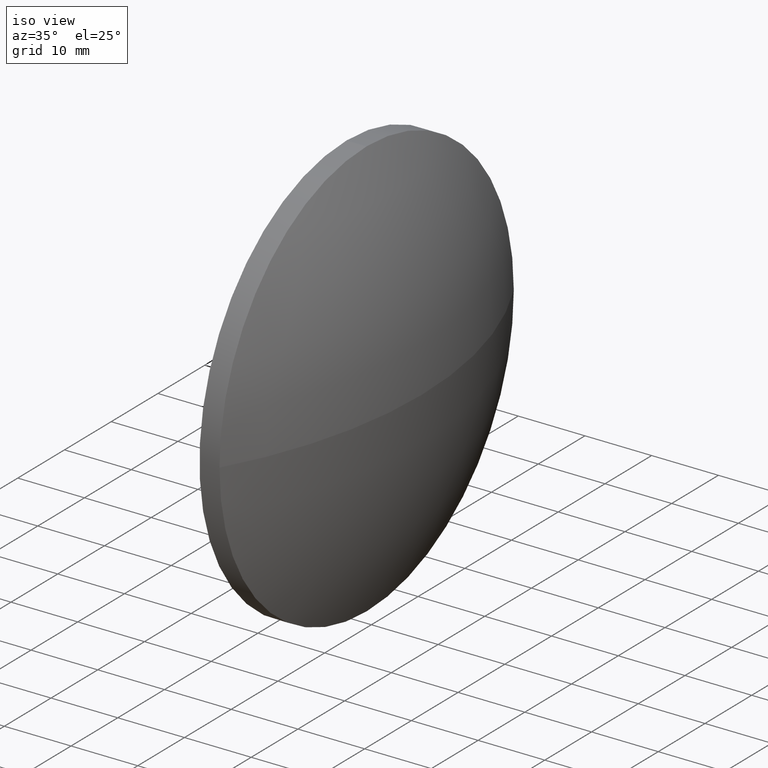
[diagram: clean part render]
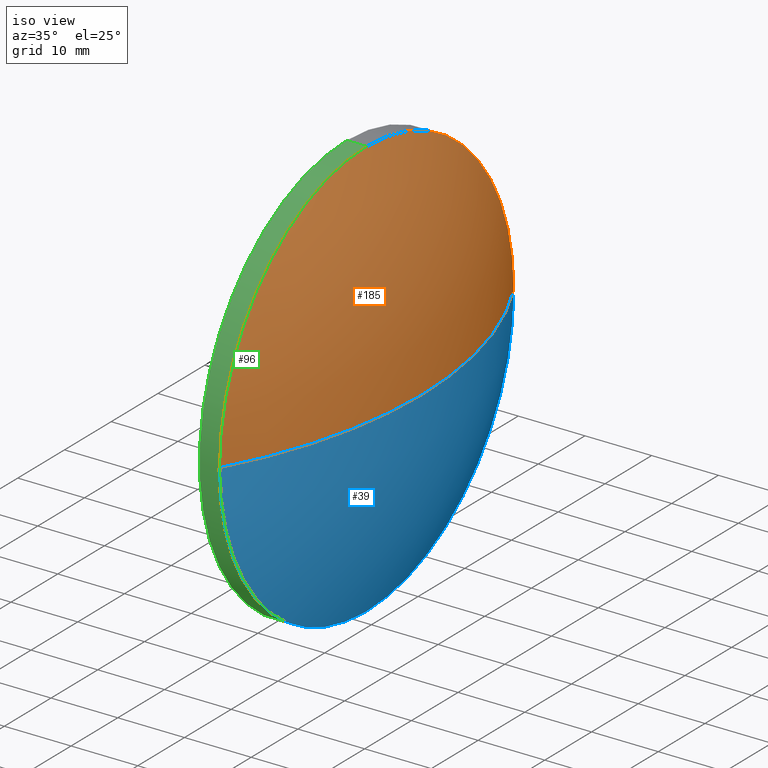
[diagram: same view with three faces highlighted in distinct colors, each labeled with its STEP entity id]
A machine part, iso view with three faces highlighted in distinct colors.
Their STEP definitions:

[orange] entity #185 — the highlighted spherical surface has radius 64.5344 mm.
#2 = CIRCLE ( 'NONE', #41, 31.50000000000000000 ) ;
#3 = DIRECTION ( 'NONE',  ( -0.0000000000000000000, -1.224646799147353200E-016, -1.000000000000000000 ) ) ;
#6 = DIRECTION ( 'NONE',  ( 1.000000000000000000, 0.0000000000000000000, 0.0000000000000000000 ) ) ;
#10 = VERTEX_POINT ( 'NONE', #136 ) ;
#20 = VERTEX_POINT ( 'NONE', #116 ) ;
#23 = CIRCLE ( 'NONE', #150, 64.53435444579774600 ) ;
#24 = ORIENTED_EDGE ( 'NONE', *, *, #93, .T. ) ;
#30 = AXIS2_PLACEMENT_3D ( 'NONE', #57, #37, #86 ) ;
#37 = DIRECTION ( 'NONE',  ( 1.000000000000000000, -0.0000000000000000000, -0.0000000000000000000 ) ) ;
#41 = AXIS2_PLACEMENT_3D ( 'NONE', #176, #71, #145 ) ;
#43 = CARTESIAN_POINT ( 'NONE',  ( 228.9653141997173700, 98.96710985282442200, 0.0000000000000000000 ) ) ;
#46 = CARTESIAN_POINT ( 'NONE',  ( 172.6409597539196500, 130.4671098528244200, 0.0000000000000000000 ) ) ;
#50 = SPHERICAL_SURFACE ( 'NONE', #184, 64.53435444579774600 ) ;
#57 = CARTESIAN_POINT ( 'NONE',  ( 228.9653141997173700, 130.4671098528244200, 0.0000000000000000000 ) ) ;
#69 = ORIENTED_EDGE ( 'NONE', *, *, #144, .F. ) ;
#70 = DIRECTION ( 'NONE',  ( 0.0000000000000000000, 0.0000000000000000000, 1.000000000000000000 ) ) ;
#71 = DIRECTION ( 'NONE',  ( 1.000000000000000000, -0.0000000000000000000, -0.0000000000000000000 ) ) ;
#84 = ORIENTED_EDGE ( 'NONE', *, *, #162, .T. ) ;
#86 = DIRECTION ( 'NONE',  ( 0.0000000000000000000, 0.0000000000000000000, -1.000000000000000000 ) ) ;
#88 = CARTESIAN_POINT ( 'NONE',  ( 172.6409597539196500, 130.4671098528244200, 0.0000000000000000000 ) ) ;
#89 = EDGE_LOOP ( 'NONE', ( #69, #97, #84, #24 ) ) ;
#92 = CARTESIAN_POINT ( 'NONE',  ( 228.9653141997173700, 161.9671098528244200, -3.857637417314163500E-015 ) ) ;
#93 = EDGE_CURVE ( 'NONE', #139, #10, #23, .T. ) ;
#97 = ORIENTED_EDGE ( 'NONE', *, *, #113, .T. ) ;
#113 = EDGE_CURVE ( 'NONE', #114, #20, #2, .T. ) ;
#114 = VERTEX_POINT ( 'NONE', #92 ) ;
#116 = CARTESIAN_POINT ( 'NONE',  ( 228.9653141997173700, 130.4671098528244200, 31.50000000000000000 ) ) ;
#120 = DIRECTION ( 'NONE',  ( 0.0000000000000000000, -1.000000000000000000, 0.0000000000000000000 ) ) ;
#122 = DIRECTION ( 'NONE',  ( 0.0000000000000000000, 1.000000000000000000, -1.224646799147353200E-016 ) ) ;
#133 = AXIS2_PLACEMENT_3D ( 'NONE', #156, #3, #122 ) ;
#136 = CARTESIAN_POINT ( 'NONE',  ( 237.1753141997173800, 130.4671098528244200, 0.0000000000000000000 ) ) ;
#139 = VERTEX_POINT ( 'NONE', #43 ) ;
#144 = EDGE_CURVE ( 'NONE', #114, #10, #186, .T. ) ;
#145 = DIRECTION ( 'NONE',  ( 0.0000000000000000000, 0.0000000000000000000, -1.000000000000000000 ) ) ;
#149 = CIRCLE ( 'NONE', #30, 31.50000000000000000 ) ;
#150 = AXIS2_PLACEMENT_3D ( 'NONE', #46, #70, #6 ) ;
#156 = CARTESIAN_POINT ( 'NONE',  ( 172.6409597539196500, 130.4671098528244200, 0.0000000000000000000 ) ) ;
#160 = DIRECTION ( 'NONE',  ( 0.0000000000000000000, -0.0000000000000000000, -1.000000000000000000 ) ) ;
#162 = EDGE_CURVE ( 'NONE', #20, #139, #149, .T. ) ;
#164 = FACE_OUTER_BOUND ( 'NONE', #89, .T. ) ;
#176 = CARTESIAN_POINT ( 'NONE',  ( 228.9653141997173700, 130.4671098528244200, 0.0000000000000000000 ) ) ;
#184 = AXIS2_PLACEMENT_3D ( 'NONE', #88, #160, #120 ) ;
#185 = ADVANCED_FACE ( 'NONE', ( #164 ), #50, .T. ) ;
#186 = CIRCLE ( 'NONE', #133, 64.53435444579774600 ) ;

[blue] entity #39 — the highlighted spherical surface has radius 64.5344 mm.
#3 = DIRECTION ( 'NONE',  ( -0.0000000000000000000, -1.224646799147353200E-016, -1.000000000000000000 ) ) ;
#6 = DIRECTION ( 'NONE',  ( 1.000000000000000000, 0.0000000000000000000, 0.0000000000000000000 ) ) ;
#10 = VERTEX_POINT ( 'NONE', #136 ) ;
#11 = DIRECTION ( 'NONE',  ( 1.000000000000000000, -0.0000000000000000000, -0.0000000000000000000 ) ) ;
#15 = ORIENTED_EDGE ( 'NONE', *, *, #76, .T. ) ;
#16 = CIRCLE ( 'NONE', #146, 31.50000000000000000 ) ;
#21 = CARTESIAN_POINT ( 'NONE',  ( 228.9653141997173700, 130.4671098528244200, -31.50000000000000000 ) ) ;
#23 = CIRCLE ( 'NONE', #150, 64.53435444579774600 ) ;
#33 = SPHERICAL_SURFACE ( 'NONE', #100, 64.53435444579774600 ) ;
#34 = DIRECTION ( 'NONE',  ( 1.000000000000000000, -0.0000000000000000000, -0.0000000000000000000 ) ) ;
#39 = ADVANCED_FACE ( 'NONE', ( #110 ), #33, .T. ) ;
#43 = CARTESIAN_POINT ( 'NONE',  ( 228.9653141997173700, 98.96710985282442200, 0.0000000000000000000 ) ) ;
#46 = CARTESIAN_POINT ( 'NONE',  ( 172.6409597539196500, 130.4671098528244200, 0.0000000000000000000 ) ) ;
#52 = VERTEX_POINT ( 'NONE', #21 ) ;
#60 = DIRECTION ( 'NONE',  ( 0.0000000000000000000, 0.0000000000000000000, -1.000000000000000000 ) ) ;
#64 = EDGE_CURVE ( 'NONE', #139, #52, #16, .T. ) ;
#70 = DIRECTION ( 'NONE',  ( 0.0000000000000000000, 0.0000000000000000000, 1.000000000000000000 ) ) ;
#76 = EDGE_CURVE ( 'NONE', #52, #114, #111, .T. ) ;
#82 = CARTESIAN_POINT ( 'NONE',  ( 228.9653141997173700, 130.4671098528244200, 0.0000000000000000000 ) ) ;
#92 = CARTESIAN_POINT ( 'NONE',  ( 228.9653141997173700, 161.9671098528244200, -3.857637417314163500E-015 ) ) ;
#93 = EDGE_CURVE ( 'NONE', #139, #10, #23, .T. ) ;
#99 = ORIENTED_EDGE ( 'NONE', *, *, #64, .T. ) ;
#100 = AXIS2_PLACEMENT_3D ( 'NONE', #117, #173, #140 ) ;
#109 = ORIENTED_EDGE ( 'NONE', *, *, #93, .F. ) ;
#110 = FACE_OUTER_BOUND ( 'NONE', #134, .T. ) ;
#111 = CIRCLE ( 'NONE', #137, 31.50000000000000000 ) ;
#114 = VERTEX_POINT ( 'NONE', #92 ) ;
#117 = CARTESIAN_POINT ( 'NONE',  ( 172.6409597539196500, 130.4671098528244200, 0.0000000000000000000 ) ) ;
#122 = DIRECTION ( 'NONE',  ( 0.0000000000000000000, 1.000000000000000000, -1.224646799147353200E-016 ) ) ;
#133 = AXIS2_PLACEMENT_3D ( 'NONE', #156, #3, #122 ) ;
#134 = EDGE_LOOP ( 'NONE', ( #99, #15, #178, #109 ) ) ;
#136 = CARTESIAN_POINT ( 'NONE',  ( 237.1753141997173800, 130.4671098528244200, 0.0000000000000000000 ) ) ;
#137 = AXIS2_PLACEMENT_3D ( 'NONE', #181, #34, #60 ) ;
#139 = VERTEX_POINT ( 'NONE', #43 ) ;
#140 = DIRECTION ( 'NONE',  ( 0.0000000000000000000, -1.000000000000000000, 0.0000000000000000000 ) ) ;
#144 = EDGE_CURVE ( 'NONE', #114, #10, #186, .T. ) ;
#146 = AXIS2_PLACEMENT_3D ( 'NONE', #82, #11, #152 ) ;
#150 = AXIS2_PLACEMENT_3D ( 'NONE', #46, #70, #6 ) ;
#152 = DIRECTION ( 'NONE',  ( 0.0000000000000000000, 0.0000000000000000000, -1.000000000000000000 ) ) ;
#156 = CARTESIAN_POINT ( 'NONE',  ( 172.6409597539196500, 130.4671098528244200, 0.0000000000000000000 ) ) ;
#173 = DIRECTION ( 'NONE',  ( 0.0000000000000000000, -0.0000000000000000000, -1.000000000000000000 ) ) ;
#178 = ORIENTED_EDGE ( 'NONE', *, *, #144, .T. ) ;
#181 = CARTESIAN_POINT ( 'NONE',  ( 228.9653141997173700, 130.4671098528244200, 0.0000000000000000000 ) ) ;
#186 = CIRCLE ( 'NONE', #133, 64.53435444579774600 ) ;

[green] entity #96 — the highlighted cylindrical surface (partial cylindrical patch) has radius 31.5 mm, axis along (1, -0, -0).
#7 = ORIENTED_EDGE ( 'NONE', *, *, #64, .F. ) ;
#8 = AXIS2_PLACEMENT_3D ( 'NONE', #179, #74, #26 ) ;
#11 = DIRECTION ( 'NONE',  ( 1.000000000000000000, -0.0000000000000000000, -0.0000000000000000000 ) ) ;
#16 = CIRCLE ( 'NONE', #146, 31.50000000000000000 ) ;
#18 = CIRCLE ( 'NONE', #8, 31.50000000000000000 ) ;
#20 = VERTEX_POINT ( 'NONE', #116 ) ;
#21 = CARTESIAN_POINT ( 'NONE',  ( 228.9653141997173700, 130.4671098528244200, -31.50000000000000000 ) ) ;
#26 = DIRECTION ( 'NONE',  ( 0.0000000000000000000, 0.0000000000000000000, -1.000000000000000000 ) ) ;
#29 = ORIENTED_EDGE ( 'NONE', *, *, #62, .T. ) ;
#30 = AXIS2_PLACEMENT_3D ( 'NONE', #57, #37, #86 ) ;
#31 = CARTESIAN_POINT ( 'NONE',  ( 237.1753141997173800, 130.4671098528244200, -31.50000000000000000 ) ) ;
#37 = DIRECTION ( 'NONE',  ( 1.000000000000000000, -0.0000000000000000000, -0.0000000000000000000 ) ) ;
#42 = ORIENTED_EDGE ( 'NONE', *, *, #162, .F. ) ;
#43 = CARTESIAN_POINT ( 'NONE',  ( 228.9653141997173700, 98.96710985282442200, 0.0000000000000000000 ) ) ;
#52 = VERTEX_POINT ( 'NONE', #21 ) ;
#54 = DIRECTION ( 'NONE',  ( 1.000000000000000000, -0.0000000000000000000, -0.0000000000000000000 ) ) ;
#57 = CARTESIAN_POINT ( 'NONE',  ( 228.9653141997173700, 130.4671098528244200, 0.0000000000000000000 ) ) ;
#62 = EDGE_CURVE ( 'NONE', #147, #52, #90, .T. ) ;
#63 = ORIENTED_EDGE ( 'NONE', *, *, #87, .F. ) ;
#64 = EDGE_CURVE ( 'NONE', #139, #52, #16, .T. ) ;
#67 = CARTESIAN_POINT ( 'NONE',  ( 237.1753141997173800, 130.4671098528244200, 31.50000000000000000 ) ) ;
#72 = CARTESIAN_POINT ( 'NONE',  ( 225.9653141997173400, 130.4671098528244200, -31.50000000000000000 ) ) ;
#73 = ORIENTED_EDGE ( 'NONE', *, *, #77, .T. ) ;
#74 = DIRECTION ( 'NONE',  ( 1.000000000000000000, -0.0000000000000000000, -0.0000000000000000000 ) ) ;
#77 = EDGE_CURVE ( 'NONE', #148, #147, #18, .T. ) ;
#82 = CARTESIAN_POINT ( 'NONE',  ( 228.9653141997173700, 130.4671098528244200, 0.0000000000000000000 ) ) ;
#86 = DIRECTION ( 'NONE',  ( 0.0000000000000000000, 0.0000000000000000000, -1.000000000000000000 ) ) ;
#87 = EDGE_CURVE ( 'NONE', #148, #20, #98, .T. ) ;
#90 = LINE ( 'NONE', #31, #135 ) ;
#91 = DIRECTION ( 'NONE',  ( 0.0000000000000000000, 0.0000000000000000000, -1.000000000000000000 ) ) ;
#96 = ADVANCED_FACE ( 'NONE', ( #132 ), #157, .T. ) ;
#98 = LINE ( 'NONE', #67, #142 ) ;
#104 = DIRECTION ( 'NONE',  ( 1.000000000000000000, -0.0000000000000000000, -0.0000000000000000000 ) ) ;
#105 = AXIS2_PLACEMENT_3D ( 'NONE', #107, #177, #91 ) ;
#107 = CARTESIAN_POINT ( 'NONE',  ( 237.1753141997173800, 130.4671098528244200, 0.0000000000000000000 ) ) ;
#116 = CARTESIAN_POINT ( 'NONE',  ( 228.9653141997173700, 130.4671098528244200, 31.50000000000000000 ) ) ;
#123 = CARTESIAN_POINT ( 'NONE',  ( 225.9653141997173400, 130.4671098528244200, 31.50000000000000000 ) ) ;
#130 = EDGE_LOOP ( 'NONE', ( #63, #73, #29, #7, #42 ) ) ;
#132 = FACE_OUTER_BOUND ( 'NONE', #130, .T. ) ;
#135 = VECTOR ( 'NONE', #54, 1000.000000000000000 ) ;
#139 = VERTEX_POINT ( 'NONE', #43 ) ;
#142 = VECTOR ( 'NONE', #104, 1000.000000000000000 ) ;
#146 = AXIS2_PLACEMENT_3D ( 'NONE', #82, #11, #152 ) ;
#147 = VERTEX_POINT ( 'NONE', #72 ) ;
#148 = VERTEX_POINT ( 'NONE', #123 ) ;
#149 = CIRCLE ( 'NONE', #30, 31.50000000000000000 ) ;
#152 = DIRECTION ( 'NONE',  ( 0.0000000000000000000, 0.0000000000000000000, -1.000000000000000000 ) ) ;
#157 = CYLINDRICAL_SURFACE ( 'NONE', #105, 31.50000000000000000 ) ;
#162 = EDGE_CURVE ( 'NONE', #20, #139, #149, .T. ) ;
#177 = DIRECTION ( 'NONE',  ( 1.000000000000000000, -0.0000000000000000000, -0.0000000000000000000 ) ) ;
#179 = CARTESIAN_POINT ( 'NONE',  ( 225.9653141997173400, 130.4671098528244200, 0.0000000000000000000 ) ) ;